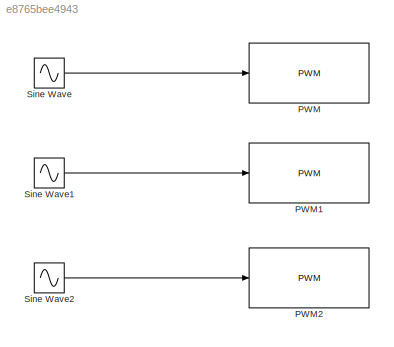
MODEL slx_e8765bee4943
KIND model
BLOCK [Reference] PWM  REF=arduinolib/PWM
  Ports = [1]
  SourceBlock = arduinolib/PWM
  SourceType = Arduino PWM
  blockPlatform = arduino
  pinNumber = 5
BLOCK [Reference] PWM1  REF=arduinolib/PWM
  Ports = [1]
  SourceBlock = arduinolib/PWM
  SourceType = Arduino PWM
  blockPlatform = arduino
  pinNumber = 6
BLOCK [Reference] PWM2  REF=arduinolib/PWM
  Ports = [1]
  SourceBlock = arduinolib/PWM
  SourceType = Arduino PWM
  blockPlatform = arduino
  pinNumber = 9
BLOCK [Sin] Sine Wave
  Amplitude = 127
  Bias = 128
  Frequency = .5
  Phase = pi/6
  Ports = [0, 1]
  SampleTime = 0
BLOCK [Sin] Sine Wave1
  Amplitude = 127
  Bias = 128
  Ports = [0, 1]
  SampleTime = 0
BLOCK [Sin] Sine Wave2
  Amplitude = 127
  Bias = 128
  Frequency = .33
  Ports = [0, 1]
  SampleTime = 0
LINE Sine Wave1:1 -> PWM1:1
LINE Sine Wave2:1 -> PWM2:1
LINE Sine Wave:1 -> PWM:1
